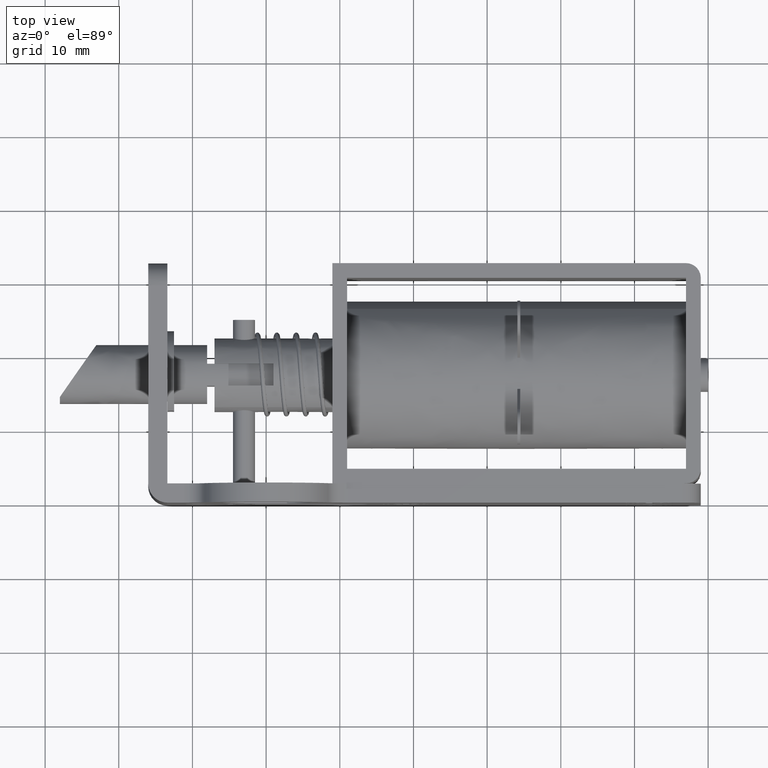
[diagram: clean part render]
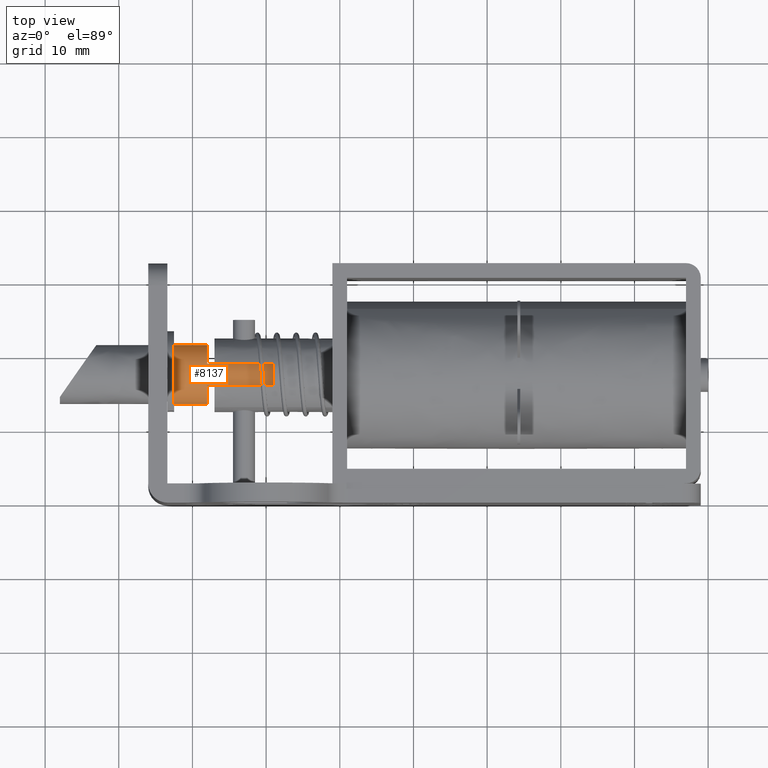
[diagram: same view with one face highlighted and labeled with its STEP entity id]
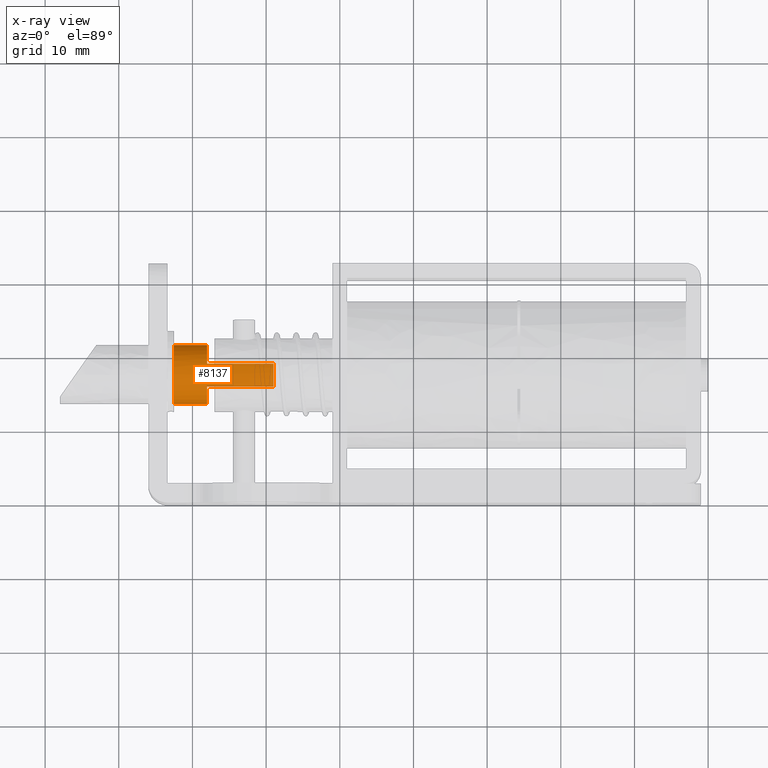
[diagram: x-ray of the same camera — body ghosted, the highlighted face saturated]
A machine part, top view. The second image highlights one B-rep face of the part: STEP entity #8137.
The next image is the same camera in x-ray: the body ghosted, the highlighted face saturated — about 0% of this face is hidden behind the body in this view.
In plain terms, the highlighted face is a freeform B-spline surface patch.
Its self-contained STEP definition (entity closure, byte-faithful):
#7943=CARTESIAN_POINT('',(1.337499974999998,20.064216350493304,-14.150815414771470));
#7944=CARTESIAN_POINT('',(1.337499974999998,19.054766800954855,-14.940294250411586));
#7945=CARTESIAN_POINT('',(1.337499974999998,17.774477549461349,-14.996192886327430));
#7946=CARTESIAN_POINT('',(1.337499974999998,13.778284663133915,-15.170670435788775));
#7947=CARTESIAN_POINT('',(1.337499974999998,13.603807113672570,-11.174477549461340));
#7948=CARTESIAN_POINT('',(1.337499974999998,13.429329564211228,-7.178284663133914));
#7949=CARTESIAN_POINT('',(1.337499974999998,17.425522450538661,-7.003807113672570));
#7950=CARTESIAN_POINT('',(1.337499974999998,21.421715336866090,-6.829329564211227));
#7951=CARTESIAN_POINT('',(1.337499974999998,21.596192886327430,-10.825522450538660));
#7952=CARTESIAN_POINT('',(-12.845936474374904,20.064216350493304,-14.150815414771470));
#7953=CARTESIAN_POINT('',(-12.845936474374898,19.054766800954855,-14.940294250411586));
#7954=CARTESIAN_POINT('',(-12.845936474374900,17.774477549461349,-14.996192886327430));
#7955=CARTESIAN_POINT('',(-12.845936474374902,13.778284663133915,-15.170670435788775));
#7956=CARTESIAN_POINT('',(-12.845936474374900,13.603807113672570,-11.174477549461340));
#7957=CARTESIAN_POINT('',(-12.845936474374902,13.429329564211228,-7.178284663133914));
#7958=CARTESIAN_POINT('',(-12.845936474374900,17.425522450538661,-7.003807113672570));
#7959=CARTESIAN_POINT('',(-12.845936474374902,21.421715336866090,-6.829329564211227));
#7960=CARTESIAN_POINT('',(-12.845936474374900,21.596192886327430,-10.825522450538660));
#7968=(BOUNDED_SURFACE()B_SPLINE_SURFACE(2,1,((#7943,#7952),(#7944,#7953),(#7945,#7954),(#7946,#7955),(#7947,#7956),(#7948,#7957),(#7949,#7958),(#7950,#7959),(#7951,#7960)),.UNSPECIFIED.,.F.,.F.,.U.)B_SPLINE_SURFACE_WITH_KNOTS((3,2,2,2,3),(2,2),(0.0,2.650966799187809,9.278383797157330,15.905800795126851,22.533217793096370),(0.0,14.183436449374900),.UNSPECIFIED.)GEOMETRIC_REPRESENTATION_ITEM()RATIONAL_B_SPLINE_SURFACE(((0.859411254969543,0.859411254969543),(0.882842712474619,0.882842712474619),(1.0,1.0),(0.707106781186548,0.707106781186548),(1.0,1.0),(0.707106781186548,0.707106781186548),(1.0,1.0),(0.707106781186548,0.707106781186548),(1.0,1.0)))REPRESENTATION_ITEM('')SURFACE());
#7969=CARTESIAN_POINT('',(-7.999999999999799,20.064216350510051,-14.150815414758339));
#7970=VERTEX_POINT('',#7969);
#7971=CARTESIAN_POINT('',(-7.999999999999799,19.0,-14.746998799038961));
#7972=VERTEX_POINT('',#7971);
#7973=CARTESIAN_POINT('',(-7.999999999999799,20.064216350510044,-14.150815414758343));
#7974=CARTESIAN_POINT('',(-7.999999999999800,19.578098693840278,-14.531002420394831));
#7975=CARTESIAN_POINT('',(-7.999999999999799,19.0,-14.746998799038961));
#7983=(BOUNDED_CURVE()B_SPLINE_CURVE(2,(#7973,#7974,#7975),.UNSPECIFIED.,.F.,.U.)B_SPLINE_CURVE_WITH_KNOTS((3,3),(0.870917476880026,1.0),.UNSPECIFIED.)CURVE()GEOMETRIC_REPRESENTATION_ITEM()RATIONAL_B_SPLINE_CURVE((0.931660951660254,0.953939182837528,1.0))REPRESENTATION_ITEM(''));
#7984=EDGE_CURVE('',#7970,#7972,#7983,.T.);
#7985=ORIENTED_EDGE('',*,*,#7984,.T.);
#7986=CARTESIAN_POINT('',(1.0,19.0,-14.746998799039000));
#7987=VERTEX_POINT('',#7986);
#7988=CARTESIAN_POINT('',(-7.999999999999799,19.0,-14.746998799038961));
#7989=CARTESIAN_POINT('',(1.0,19.0,-14.746998799039000));
#7990=QUASI_UNIFORM_CURVE('',1,(#7988,#7989),.UNSPECIFIED.,.F.,.U.);
#7991=EDGE_CURVE('',#7972,#7987,#7990,.T.);
#7992=ORIENTED_EDGE('',*,*,#7991,.T.);
#7993=CARTESIAN_POINT('',(1.0,16.0,-14.666060555964620));
#7994=VERTEX_POINT('',#7993);
#7995=CARTESIAN_POINT('',(1.0,19.000000000000011,-14.746998799039030));
#7996=CARTESIAN_POINT('',(1.0,17.483622502020079,-15.313566500559615));
#7997=CARTESIAN_POINT('',(1.0,15.999999999999980,-14.666060555964661));
#8005=(BOUNDED_CURVE()B_SPLINE_CURVE(2,(#7995,#7996,#7997),.UNSPECIFIED.,.F.,.U.)CURVE()GEOMETRIC_REPRESENTATION_ITEM()QUASI_UNIFORM_CURVE()RATIONAL_B_SPLINE_CURVE((1.0,0.926969600708471,1.0))REPRESENTATION_ITEM(''));
#8006=EDGE_CURVE('',#7987,#7994,#8005,.T.);
#8007=ORIENTED_EDGE('',*,*,#8006,.T.);
#8008=CARTESIAN_POINT('',(-7.999999999999799,16.0,-14.666060555964640));
#8009=VERTEX_POINT('',#8008);
#8010=CARTESIAN_POINT('',(1.0,16.0,-14.666060555964620));
#8011=CARTESIAN_POINT('',(-7.999999999999799,16.0,-14.666060555964640));
#8012=QUASI_UNIFORM_CURVE('',1,(#8010,#8011),.UNSPECIFIED.,.F.,.U.);
#8013=EDGE_CURVE('',#7994,#8009,#8012,.T.);
#8014=ORIENTED_EDGE('',*,*,#8013,.T.);
#8015=CARTESIAN_POINT('',(-7.999999999999799,16.0,-7.333939444035380));
#8016=VERTEX_POINT('',#8015);
#8017=CARTESIAN_POINT('',(-7.999999999999799,15.999999999999989,-14.666060555964670));
#8018=CARTESIAN_POINT('',(-7.999999999999799,13.600000000000000,-13.618614682831900));
#8019=CARTESIAN_POINT('',(-7.999999999999799,13.600000000000000,-11.0));
#8020=CARTESIAN_POINT('',(-7.999999999999799,13.600000000000000,-8.381385317168107));
#8021=CARTESIAN_POINT('',(-7.999999999999799,16.0,-7.333939444035380));
#8029=(BOUNDED_CURVE()B_SPLINE_CURVE(2,(#8017,#8018,#8019,#8020,#8021),.UNSPECIFIED.,.F.,.U.)B_SPLINE_CURVE_WITH_KNOTS((3,2,3),(0.0,0.500000000000000,1.0),.UNSPECIFIED.)CURVE()GEOMETRIC_REPRESENTATION_ITEM()RATIONAL_B_SPLINE_CURVE((1.0,0.836660026534076,1.0,0.836660026534076,1.0))REPRESENTATION_ITEM(''));
#8030=EDGE_CURVE('',#8009,#8016,#8029,.T.);
#8031=ORIENTED_EDGE('',*,*,#8030,.T.);
#8032=CARTESIAN_POINT('',(1.0,16.0,-7.333939444035370));
#8033=VERTEX_POINT('',#8032);
#8034=CARTESIAN_POINT('',(-7.999999999999799,16.0,-7.333939444035380));
#8035=CARTESIAN_POINT('',(1.0,16.0,-7.333939444035370));
#8036=QUASI_UNIFORM_CURVE('',1,(#8034,#8035),.UNSPECIFIED.,.F.,.U.);
#8037=EDGE_CURVE('',#8016,#8033,#8036,.T.);
#8038=ORIENTED_EDGE('',*,*,#8037,.T.);
#8039=CARTESIAN_POINT('',(1.0,19.0,-7.253001200960990));
#8040=VERTEX_POINT('',#8039);
#8041=CARTESIAN_POINT('',(1.0,16.0,-7.333939444035370));
#8042=CARTESIAN_POINT('',(1.0,17.483622502020086,-6.686433499440386));
#8043=CARTESIAN_POINT('',(1.0,19.000000000000011,-7.253001200960964));
#8051=(BOUNDED_CURVE()B_SPLINE_CURVE(2,(#8041,#8042,#8043),.UNSPECIFIED.,.F.,.U.)CURVE()GEOMETRIC_REPRESENTATION_ITEM()QUASI_UNIFORM_CURVE()RATIONAL_B_SPLINE_CURVE((1.0,0.926969600708472,1.0))REPRESENTATION_ITEM(''));
#8052=EDGE_CURVE('',#8033,#8040,#8051,.T.);
#8053=ORIENTED_EDGE('',*,*,#8052,.T.);
#8054=CARTESIAN_POINT('',(-7.999999999999799,19.0,-7.253001200960950));
#8055=VERTEX_POINT('',#8054);
#8056=CARTESIAN_POINT('',(1.0,19.0,-7.253001200960990));
#8057=CARTESIAN_POINT('',(-7.999999999999799,19.0,-7.253001200960950));
#8058=QUASI_UNIFORM_CURVE('',1,(#8056,#8057),.UNSPECIFIED.,.F.,.U.);
#8059=EDGE_CURVE('',#8040,#8055,#8058,.T.);
#8060=ORIENTED_EDGE('',*,*,#8059,.T.);
#8061=CARTESIAN_POINT('',(-7.999999999999799,21.596192886322381,-10.825522450422939));
#8062=VERTEX_POINT('',#8061);
#8063=CARTESIAN_POINT('',(-7.999999999999799,19.0,-7.253001200960958));
#8064=CARTESIAN_POINT('',(-7.999999999999798,21.480680937996897,-8.179863871449760));
#8065=CARTESIAN_POINT('',(-7.999999999999799,21.596192886322374,-10.825522450422939));
#8073=(BOUNDED_CURVE()B_SPLINE_CURVE(2,(#8063,#8064,#8065),.UNSPECIFIED.,.F.,.U.)B_SPLINE_CURVE_WITH_KNOTS((3,3),(0.0,0.480992326832227),.UNSPECIFIED.)CURVE()GEOMETRIC_REPRESENTATION_ITEM()RATIONAL_B_SPLINE_CURVE((1.0,0.828366388514270,0.986950577633099))REPRESENTATION_ITEM(''));
#8074=EDGE_CURVE('',#8055,#8062,#8073,.T.);
#8075=ORIENTED_EDGE('',*,*,#8074,.T.);
#8076=CARTESIAN_POINT('',(-12.499998999999899,21.596192886317191,-10.825522450304190));
#8077=VERTEX_POINT('',#8076);
#8078=CARTESIAN_POINT('',(-7.999999999999799,21.596192886322381,-10.825522450422939));
#8079=CARTESIAN_POINT('',(-12.499998999999899,21.596192886317191,-10.825522450304190));
#8080=QUASI_UNIFORM_CURVE('',1,(#8078,#8079),.UNSPECIFIED.,.F.,.U.);
#8081=EDGE_CURVE('',#8062,#8077,#8080,.T.);
#8082=ORIENTED_EDGE('',*,*,#8081,.T.);
#8083=CARTESIAN_POINT('',(-12.499998999999899,17.600000000000001,-6.999999999999999));
#8084=VERTEX_POINT('',#8083);
#8085=CARTESIAN_POINT('',(-12.499998999999899,17.600000000000001,-6.999999999999999));
#8086=CARTESIAN_POINT('',(-12.499998999999903,21.429166968569469,-6.999999999999999));
#8087=CARTESIAN_POINT('',(-12.499998999999901,21.596192886317198,-10.825522450304190));
#8095=(BOUNDED_CURVE()B_SPLINE_CURVE(2,(#8085,#8086,#8087),.UNSPECIFIED.,.F.,.U.)B_SPLINE_CURVE_WITH_KNOTS((3,3),(0.0,0.242354538549359),.UNSPECIFIED.)CURVE()GEOMETRIC_REPRESENTATION_ITEM()RATIONAL_B_SPLINE_CURVE((1.0,0.716063996440918,0.982633425842719))REPRESENTATION_ITEM(''));
#8096=EDGE_CURVE('',#8084,#8077,#8095,.T.);
#8097=ORIENTED_EDGE('',*,*,#8096,.F.);
#8098=CARTESIAN_POINT('',(-12.499998999999899,17.600000000000001,-15.0));
#8099=VERTEX_POINT('',#8098);
#8100=CARTESIAN_POINT('',(-12.499998999999899,17.600000000000001,-15.0));
#8101=CARTESIAN_POINT('',(-12.499998999999901,13.600000000000003,-14.999999999999995));
#8102=CARTESIAN_POINT('',(-12.499998999999899,13.600000000000000,-11.0));
#8103=CARTESIAN_POINT('',(-12.499998999999901,13.600000000000003,-6.999999999999999));
#8104=CARTESIAN_POINT('',(-12.499998999999899,17.600000000000001,-6.999999999999999));
#8112=(BOUNDED_CURVE()B_SPLINE_CURVE(2,(#8100,#8101,#8102,#8103,#8104),.UNSPECIFIED.,.F.,.U.)B_SPLINE_CURVE_WITH_KNOTS((3,2,3),(0.500000000000000,0.750000000000000,1.0),.UNSPECIFIED.)CURVE()GEOMETRIC_REPRESENTATION_ITEM()RATIONAL_B_SPLINE_CURVE((1.0,0.707106781186548,1.0,0.707106781186548,1.0))REPRESENTATION_ITEM(''));
#8113=EDGE_CURVE('',#8099,#8084,#8112,.T.);
#8114=ORIENTED_EDGE('',*,*,#8113,.F.);
#8115=CARTESIAN_POINT('',(-12.499998999999899,20.064216350494242,-14.150815414770729));
#8116=VERTEX_POINT('',#8115);
#8117=CARTESIAN_POINT('',(-12.499998999999903,20.064216350494238,-14.150815414770728));
#8118=CARTESIAN_POINT('',(-12.499998999999898,18.978425372527642,-15.000000000000002));
#8119=CARTESIAN_POINT('',(-12.499998999999899,17.600000000000001,-15.0));
#8127=(BOUNDED_CURVE()B_SPLINE_CURVE(2,(#8117,#8118,#8119),.UNSPECIFIED.,.F.,.U.)B_SPLINE_CURVE_WITH_KNOTS((3,3),(0.393381981182150,0.500000000000000),.UNSPECIFIED.)CURVE()GEOMETRIC_REPRESENTATION_ITEM()RATIONAL_B_SPLINE_CURVE((0.856720360448046,0.875089221139707,1.0))REPRESENTATION_ITEM(''));
#8128=EDGE_CURVE('',#8116,#8099,#8127,.T.);
#8129=ORIENTED_EDGE('',*,*,#8128,.F.);
#8130=CARTESIAN_POINT('',(-7.999999999999799,20.064216350510051,-14.150815414758339));
#8131=CARTESIAN_POINT('',(-12.499998999999899,20.064216350494242,-14.150815414770729));
#8132=QUASI_UNIFORM_CURVE('',1,(#8130,#8131),.UNSPECIFIED.,.F.,.U.);
#8133=EDGE_CURVE('',#7970,#8116,#8132,.T.);
#8134=ORIENTED_EDGE('',*,*,#8133,.F.);
#8135=EDGE_LOOP('',(#7985,#7992,#8007,#8014,#8031,#8038,#8053,#8060,#8075,#8082,#8097,#8114,#8129,#8134));
#8136=FACE_OUTER_BOUND('',#8135,.T.);
#8137=ADVANCED_FACE('',(#8136),#7968,.T.);